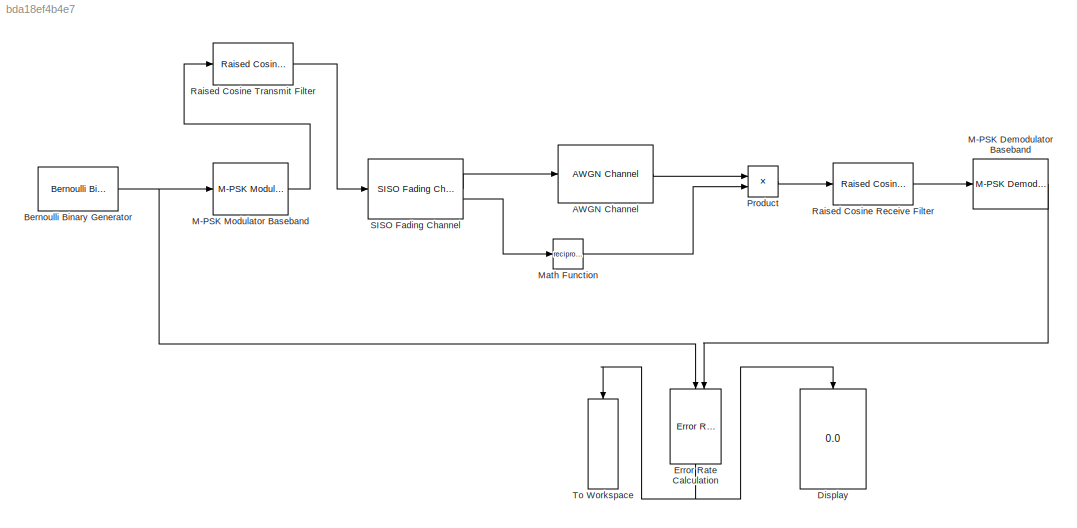
MODEL slx_bda18ef4b4e7
KIND model
CONFIG AbsTol = auto
CONFIG EnableMultiTasking = off
CONFIG FixedStep = auto
CONFIG MaxStep = auto
CONFIG MinStep = auto
CONFIG RelTol = 1e-3
CONFIG SampleTimeConstraint = Unconstrained
CONFIG SolverName = VariableStepAuto
CONFIG StartTime = 0.0
CONFIG StopTime = 30
BLOCK [Reference] AWGN Channel  REF=commchan3/AWGN
Channel
  SourceBlock = commchan3/AWGN\nChannel
  SourceType = AWGN Channel
  UserDataPersistent = on
BLOCK [Reference] Bernoulli Binary Generator  REF=commrandsrc3/Bernoulli Binary
Generator
  SourceBlock = commrandsrc3/Bernoulli Binary\nGenerator
  SourceType = Bernoulli Binary Generator
BLOCK [Display] Display
  Decimation = 1
  NameLocation = left
BLOCK [Reference] Error Rate Calculation  REF=commsink2/Error Rate
Calculation
  NameLocation = left
  SourceBlock = commsink2/Error Rate\nCalculation
  SourceType = Error Rate Calculation
BLOCK [Reference] M-PSK Demodulator Baseband  REF=commdigbbndpm3/M-PSK
Demodulator
Baseband
  SourceBlock = commdigbbndpm3/M-PSK\nDemodulator\nBaseband
  SourceType = M-PSK Demodulator Baseband
BLOCK [Reference] M-PSK Modulator Baseband  REF=commdigbbndpm3/M-PSK
Modulator
Baseband
  SourceBlock = commdigbbndpm3/M-PSK\nModulator\nBaseband
  SourceType = M-PSK Modulator Baseband
BLOCK [Math] Math Function
  Operator = reciprocal
BLOCK [Product] Product
BLOCK [Reference] Raised Cosine Receive Filter  REF=commfilt2/Raised Cosine
Receive Filter
  SourceBlock = commfilt2/Raised Cosine\nReceive Filter
  SourceType = Raised Cosine Receive Filter
BLOCK [Reference] Raised Cosine Transmit Filter  REF=commfilt2/Raised Cosine
Transmit Filter
  SourceBlock = commfilt2/Raised Cosine\nTransmit Filter
  SourceType = Raised Cosine Transmit Filter
BLOCK [Reference] SISO Fading Channel  REF=commchan3/SISO Fading Channel
  SourceBlock = commchan3/SISO Fading Channel
  SourceType = SISO Fading Channel
BLOCK [ToWorkspace] To Workspace
  FixptAsFi = on
  MaxDataPoints = 1
  NameLocation = left
  SampleTime = -1
  Save2DSignal = 2-D array (concatenate along first dimension)
  VariableName = ber
LINE AWGN Channel:1 -> Product:1
NET Bernoulli Binary Generator:1 -> Error Rate Calculation:1, M-PSK Modulator Baseband:1
NET Error Rate Calculation:1 -> Display:1, To Workspace:1
LINE M-PSK Demodulator Baseband:1 -> Error Rate Calculation:2
LINE M-PSK Modulator Baseband:1 -> Raised Cosine Transmit Filter:1
LINE Math Function:1 -> Product:2
LINE Product:1 -> Raised Cosine Receive Filter:1
LINE Raised Cosine Receive Filter:1 -> M-PSK Demodulator Baseband:1
LINE Raised Cosine Transmit Filter:1 -> SISO Fading Channel:1
LINE SISO Fading Channel:1 -> AWGN Channel:1
LINE SISO Fading Channel:2 -> Math Function:1
note: NET lines group one-source signal fan-out (src -> all destinations, sorted); 1:1 wires keep LINE
